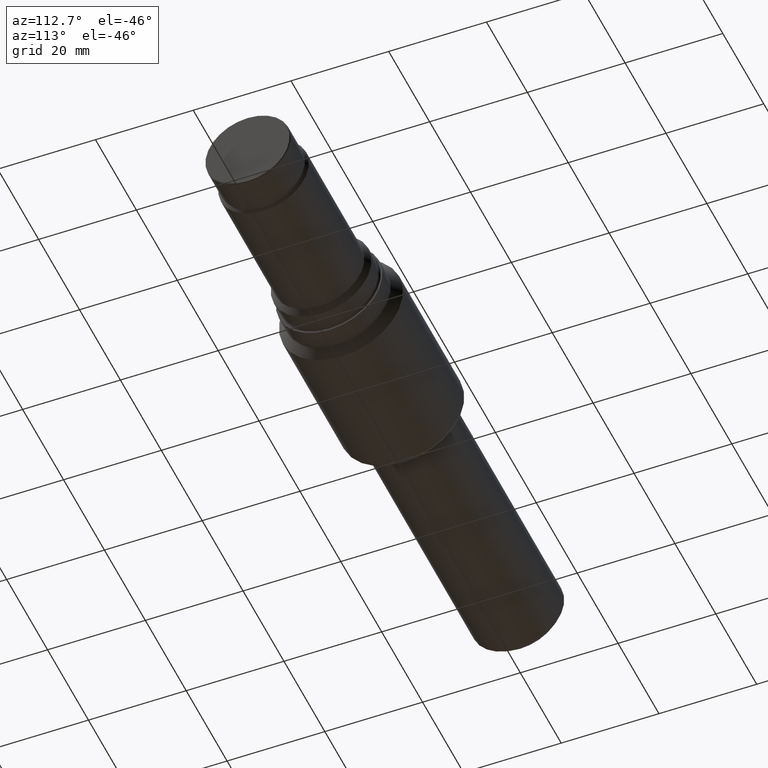
[diagram: clean part render]
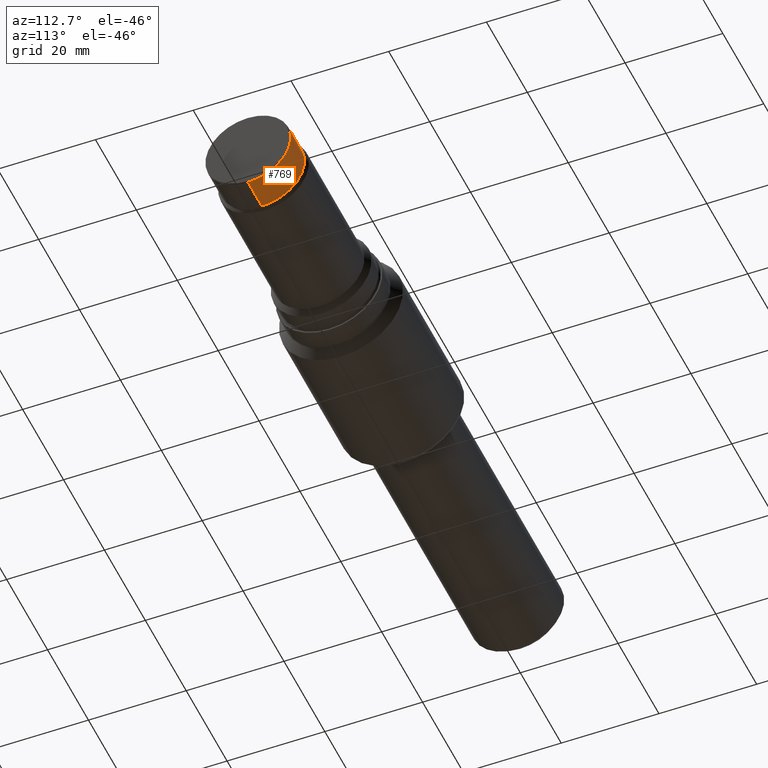
[diagram: same view with one face highlighted and labeled with its STEP entity id]
A machine part, auxiliary view. The second image highlights one B-rep face of the part: STEP entity #769.
In plain terms, the highlighted cylindrical surface (partial cylindrical patch) has radius 8.7351 mm, axis along (-1, -0, -0).
Its self-contained STEP definition (entity closure, byte-faithful):
#5 = LINE ( 'NONE', #144, #968 ) ;
#28 = DIRECTION ( 'NONE',  ( 0.000000000000000000, 0.000000000000000000, 1.000000000000000000 ) ) ;
#58 = CYLINDRICAL_SURFACE ( 'NONE', #405, 0.3439000000000000945 ) ;
#125 = DIRECTION ( 'NONE',  ( 0.000000000000000000, 0.000000000000000000, 1.000000000000000000 ) ) ;
#144 = CARTESIAN_POINT ( 'NONE',  ( 0.000000000000000000, 4.211560342267749201E-17, -0.3439000000000000945 ) ) ;
#152 = DIRECTION ( 'NONE',  ( -1.000000000000000000, -0.000000000000000000, -0.000000000000000000 ) ) ;
#213 = CARTESIAN_POINT ( 'NONE',  ( 5.243999999999999773, 4.211560342267746736E-17, -0.3438999999999999835 ) ) ;
#216 = FACE_OUTER_BOUND ( 'NONE', #369, .T. ) ;
#270 = ORIENTED_EDGE ( 'NONE', *, *, #336, .T. ) ;
#286 = VECTOR ( 'NONE', #440, 39.37007874015748143 ) ;
#333 = CARTESIAN_POINT ( 'NONE',  ( 4.977712698372209310, 4.211560342267750433E-17, -0.3439000000000002610 ) ) ;
#336 = EDGE_CURVE ( 'NONE', #402, #677, #955, .T. ) ;
#359 = CARTESIAN_POINT ( 'NONE',  ( 5.243999999999999773, 0.000000000000000000, 0.000000000000000000 ) ) ;
#369 = EDGE_LOOP ( 'NONE', ( #270, #647, #576, #596 ) ) ;
#371 = CARTESIAN_POINT ( 'NONE',  ( 0.000000000000000000, 0.000000000000000000, 0.3439000000000000945 ) ) ;
#382 = CARTESIAN_POINT ( 'NONE',  ( 5.243999999999999773, 0.000000000000000000, 0.3438999999999999835 ) ) ;
#402 = VERTEX_POINT ( 'NONE', #382 ) ;
#405 = AXIS2_PLACEMENT_3D ( 'NONE', #691, #547, #125 ) ;
#410 = AXIS2_PLACEMENT_3D ( 'NONE', #359, #686, #1005 ) ;
#440 = DIRECTION ( 'NONE',  ( -1.000000000000000000, -0.000000000000000000, -0.000000000000000000 ) ) ;
#514 = VERTEX_POINT ( 'NONE', #333 ) ;
#547 = DIRECTION ( 'NONE',  ( -1.000000000000000000, -0.000000000000000000, -0.000000000000000000 ) ) ;
#553 = AXIS2_PLACEMENT_3D ( 'NONE', #752, #591, #28 ) ;
#576 = ORIENTED_EDGE ( 'NONE', *, *, #610, .F. ) ;
#591 = DIRECTION ( 'NONE',  ( -1.000000000000000000, -0.000000000000000000, -0.000000000000000000 ) ) ;
#596 = ORIENTED_EDGE ( 'NONE', *, *, #812, .F. ) ;
#610 = EDGE_CURVE ( 'NONE', #718, #514, #952, .T. ) ;
#647 = ORIENTED_EDGE ( 'NONE', *, *, #984, .T. ) ;
#677 = VERTEX_POINT ( 'NONE', #213 ) ;
#686 = DIRECTION ( 'NONE',  ( -1.000000000000000000, -0.000000000000000000, -0.000000000000000000 ) ) ;
#691 = CARTESIAN_POINT ( 'NONE',  ( 0.000000000000000000, 0.000000000000000000, 0.000000000000000000 ) ) ;
#695 = CARTESIAN_POINT ( 'NONE',  ( 4.977712698372209310, 0.000000000000000000, 0.3439000000000002610 ) ) ;
#718 = VERTEX_POINT ( 'NONE', #695 ) ;
#752 = CARTESIAN_POINT ( 'NONE',  ( 4.977712698372209310, 0.000000000000000000, 0.000000000000000000 ) ) ;
#769 = ADVANCED_FACE ( 'NONE', ( #216 ), #58, .T. ) ;
#812 = EDGE_CURVE ( 'NONE', #402, #718, #847, .T. ) ;
#847 = LINE ( 'NONE', #371, #286 ) ;
#952 = CIRCLE ( 'NONE', #553, 0.3439000000000002610 ) ;
#955 = CIRCLE ( 'NONE', #410, 0.3438999999999999835 ) ;
#968 = VECTOR ( 'NONE', #152, 39.37007874015748143 ) ;
#984 = EDGE_CURVE ( 'NONE', #677, #514, #5, .T. ) ;
#1005 = DIRECTION ( 'NONE',  ( 0.000000000000000000, 0.000000000000000000, 1.000000000000000000 ) ) ;